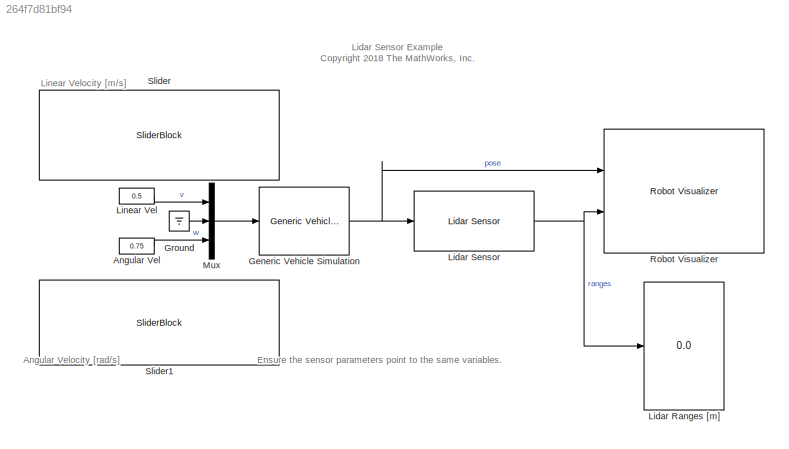
MODEL slx_264f7d81bf94
KIND model
CONFIG AbsTol = auto
CONFIG EnableMultiTasking = on
CONFIG FixedStep = 0.01
CONFIG MaxStep = auto
CONFIG MinStep = auto
CONFIG PreLoadFcn = load exampleMap\n\nscanAngles = [-3*pi/8;-pi/4;-pi/8;0;pi/8;pi/4;3*pi/8];\nmaxRange = 6;\n\nsampleTime = 0.05;
CONFIG RelTol = 1e-3
CONFIG SampleTimeConstraint = Unconstrained
CONFIG Solver = VariableStepAuto
CONFIG SolverName = VariableStepAuto
CONFIG StartTime = 0.0
CONFIG StopTime = 20
BLOCK [Constant] Angular Vel
  Value = 0.75
BLOCK [Reference] Generic Vehicle Simulation  REF=mobileRoboticsLib/Utilities/Generic Vehicle Simulation
  Ports = [1, 1]
  SourceBlock = mobileRoboticsLib/Utilities/Generic Vehicle Simulation
  SourceProductName = Mobile Robotics Simulation Toolbox
  SourceType = Generic Vehicle Simulation
BLOCK [Ground] Ground
BLOCK [Display] Lidar Ranges [m]
  Decimation = 1
  Ports = [1]
BLOCK [Reference] Lidar Sensor  REF=mobileRoboticsLib/Environments/Lidar Sensor
  Ports = [1, 1]
  SourceBlock = mobileRoboticsLib/Environments/Lidar Sensor
  SourceProductName = Mobile Robotics Simulation Toolbox
  SourceType = LidarSensor
BLOCK [Constant] Linear Vel
  Value = 0.5
BLOCK [Mux] Mux
  DisplayOption = bar
  Inputs = 3
  Ports = [3, 1]
BLOCK [Reference] Robot Visualizer  REF=mobileRoboticsLib/Environments/Robot Visualizer
  Ports = [2]
  Priority = 99
  SourceBlock = mobileRoboticsLib/Environments/Robot Visualizer
  SourceProductName = Mobile Robotics Simulation Toolbox
  SourceType = Visualizer2D
BLOCK [SliderBlock] Slider
  ScaleMax = 1
BLOCK [SliderBlock] Slider1
  ScaleMax = 1.5
  ScaleMin = -1.5
ANNOTATION (root): Ensure the sensor parameters point to the same variables.
ANNOTATION (root): Angular Velocity [rad/s]
ANNOTATION (root): Lidar Sensor Example <copyright redacted>
ANNOTATION (root): Linear Velocity [m/s]
LINE Angular Vel:1 -> Mux:3
NET Generic Vehicle Simulation:1 -> Lidar Sensor:1, Robot Visualizer:1
LINE Ground:1 -> Mux:2
NET Lidar Sensor:1 -> Lidar Ranges [m]:1, Robot Visualizer:2
LINE Linear Vel:1 -> Mux:1
LINE Mux:1 -> Generic Vehicle Simulation:1
note: NET lines group one-source signal fan-out (src -> all destinations, sorted); 1:1 wires keep LINE
